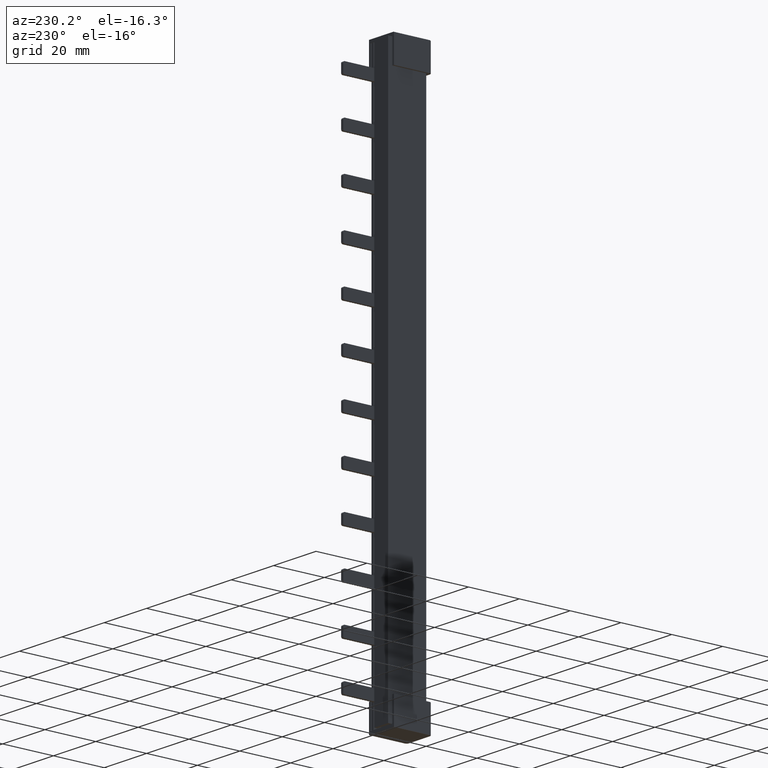
[diagram: clean part render]
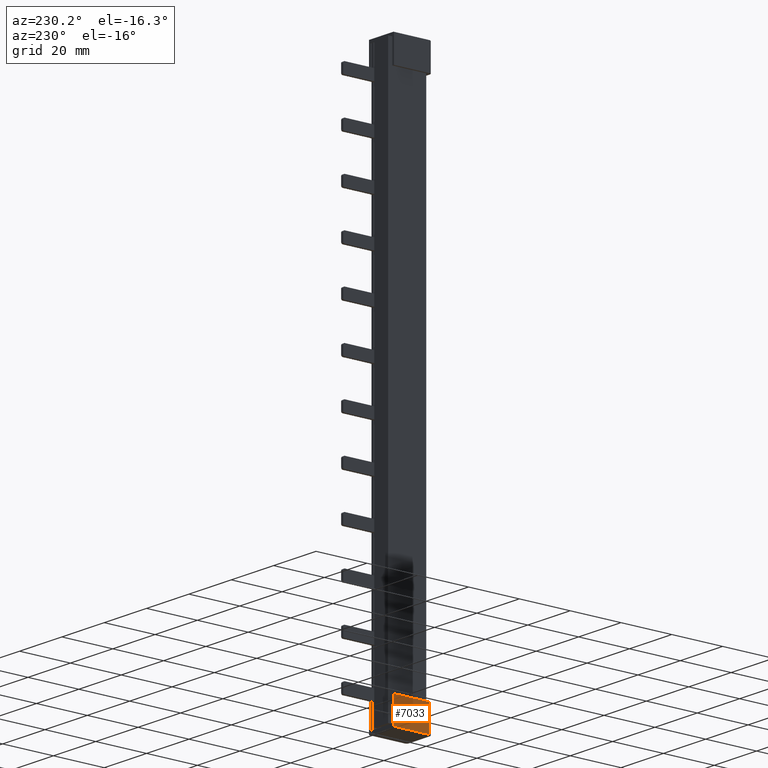
[diagram: same view with one face highlighted and labeled with its STEP entity id]
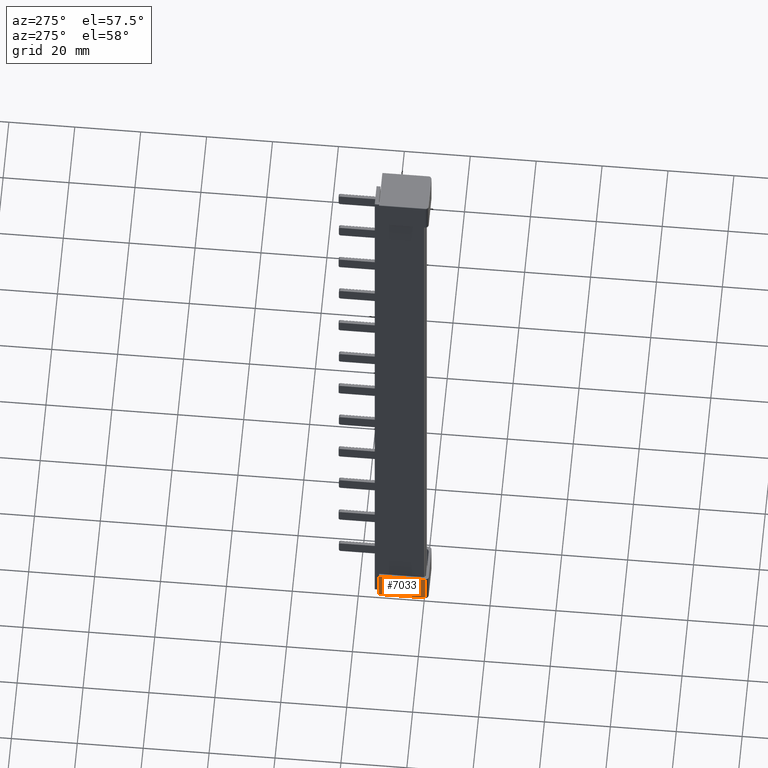
[diagram: same view with one face highlighted and labeled with its STEP entity id]
A machine part, auxiliary view. The second image highlights one B-rep face of the part: STEP entity #7033.
A second angle (auxiliary view) of the same face is appended — the face is thin or edge-on in the first view.
In plain terms, the highlighted planar face has unit normal (1, -0, 0).
Its self-contained STEP definition (entity closure, byte-faithful):
#3393 = DIRECTION ( 'NONE',  ( 6.924738560343257600E-013, 0.0000000000000000000, -1.000000000000000000 ) ) ;
#3417 = PLANE ( 'NONE',  #12136 ) ;
#3425 = FACE_OUTER_BOUND ( 'NONE', #8573, .T. ) ;
#3426 = DIRECTION ( 'NONE',  ( 1.000000000000000000, -0.0000000000000000000, 6.924738560343257600E-013 ) ) ;
#3429 = CARTESIAN_POINT ( 'NONE',  ( -1.099999999728515300, -0.3999999999998344900, 10.49999999999922600 ) ) ;
#4582 = VECTOR ( 'NONE', #17938, 1000.000000000000000 ) ;
#4955 = VECTOR ( 'NONE', #19603, 1000.000000000000000 ) ;
#4983 = VECTOR ( 'NONE', #19679, 1000.000000000000000 ) ;
#5076 = VECTOR ( 'NONE', #19875, 1000.000000000000000 ) ;
#7033 = ADVANCED_FACE ( 'NONE', ( #3425 ), #3417, .F. ) ;
#7869 = EDGE_CURVE ( 'NONE', #14137, #14054, #17942, .T. ) ;
#8320 = EDGE_CURVE ( 'NONE', #14065, #14034, #19600, .T. ) ;
#8355 = EDGE_CURVE ( 'NONE', #14034, #14054, #19642, .T. ) ;
#8573 = EDGE_LOOP ( 'NONE', ( #12861, #12834, #12883, #12877 ) ) ;
#11887 = EDGE_CURVE ( 'NONE', #14137, #14065, #19850, .T. ) ;
#12136 = AXIS2_PLACEMENT_3D ( 'NONE', #3429, #3426, #3393 ) ;
#12834 = ORIENTED_EDGE ( 'NONE', *, *, #8320, .F. ) ;
#12861 = ORIENTED_EDGE ( 'NONE', *, *, #8355, .F. ) ;
#12877 = ORIENTED_EDGE ( 'NONE', *, *, #7869, .T. ) ;
#12883 = ORIENTED_EDGE ( 'NONE', *, *, #11887, .F. ) ;
#14034 = VERTEX_POINT ( 'NONE', #21889 ) ;
#14054 = VERTEX_POINT ( 'NONE', #21908 ) ;
#14065 = VERTEX_POINT ( 'NONE', #21936 ) ;
#14137 = VERTEX_POINT ( 'NONE', #21974 ) ;
#17938 = DIRECTION ( 'NONE',  ( 0.0000000000000000000, -0.0000000000000000000, -1.000000000000000000 ) ) ;
#17942 = LINE ( 'NONE', #17964, #4582 ) ;
#17964 = CARTESIAN_POINT ( 'NONE',  ( -1.099999999728516100, 13.60000000000009400, 10.50000000000741300 ) ) ;
#19600 = LINE ( 'NONE', #19618, #4955 ) ;
#19603 = DIRECTION ( 'NONE',  ( 6.924738560343257600E-013, 0.0000000000000000000, -1.000000000000000000 ) ) ;
#19618 = CARTESIAN_POINT ( 'NONE',  ( -1.099999999728515300, -0.3999999999998344900, 10.49999999999922600 ) ) ;
#19642 = LINE ( 'NONE', #19677, #4983 ) ;
#19677 = CARTESIAN_POINT ( 'NONE',  ( -1.099999999721382700, -0.3999999999998344900, 0.1999999999992216300 ) ) ;
#19679 = DIRECTION ( 'NONE',  ( 0.0000000000000000000, 1.000000000000000000, 0.0000000000000000000 ) ) ;
#19848 = CARTESIAN_POINT ( 'NONE',  ( -1.099999999728516100, -0.3999999999998344900, 10.49999999999924300 ) ) ;
#19850 = LINE ( 'NONE', #19848, #5076 ) ;
#19875 = DIRECTION ( 'NONE',  ( -0.0000000000000000000, -1.000000000000000000, 0.0000000000000000000 ) ) ;
#21889 = CARTESIAN_POINT ( 'NONE',  ( -1.099999999721384500, -0.3999999999998344900, 0.1999999999992215500 ) ) ;
#21908 = CARTESIAN_POINT ( 'NONE',  ( -1.099999999724949400, 13.60000000000009400, 0.1999999999992911300 ) ) ;
#21936 = CARTESIAN_POINT ( 'NONE',  ( -1.099999999728515500, -0.3999999999998344900, 10.49999999999924300 ) ) ;
#21974 = CARTESIAN_POINT ( 'NONE',  ( -1.099999999728516100, 13.60000000000009400, 10.49999999999942600 ) ) ;